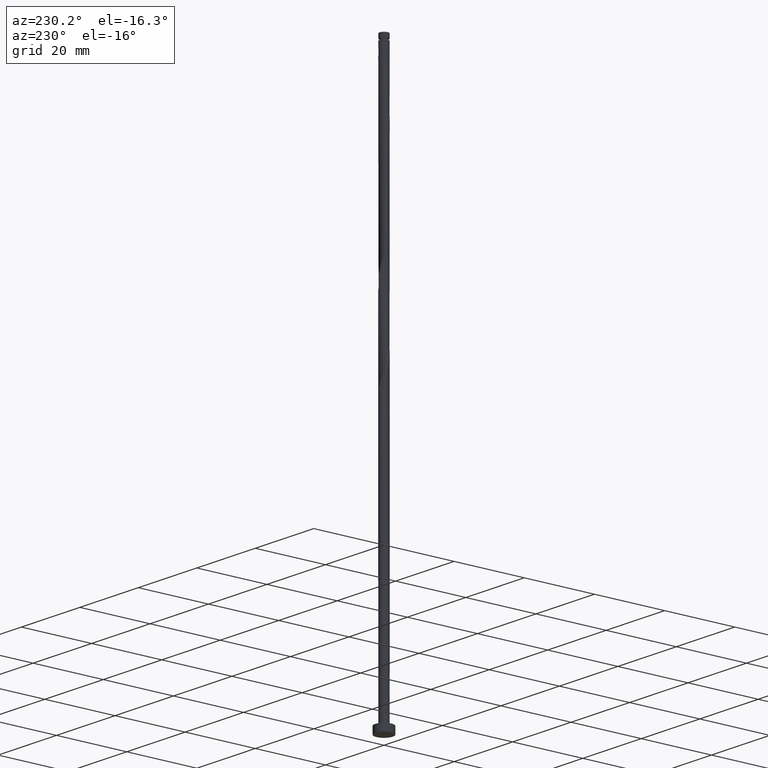
[diagram: clean part render]
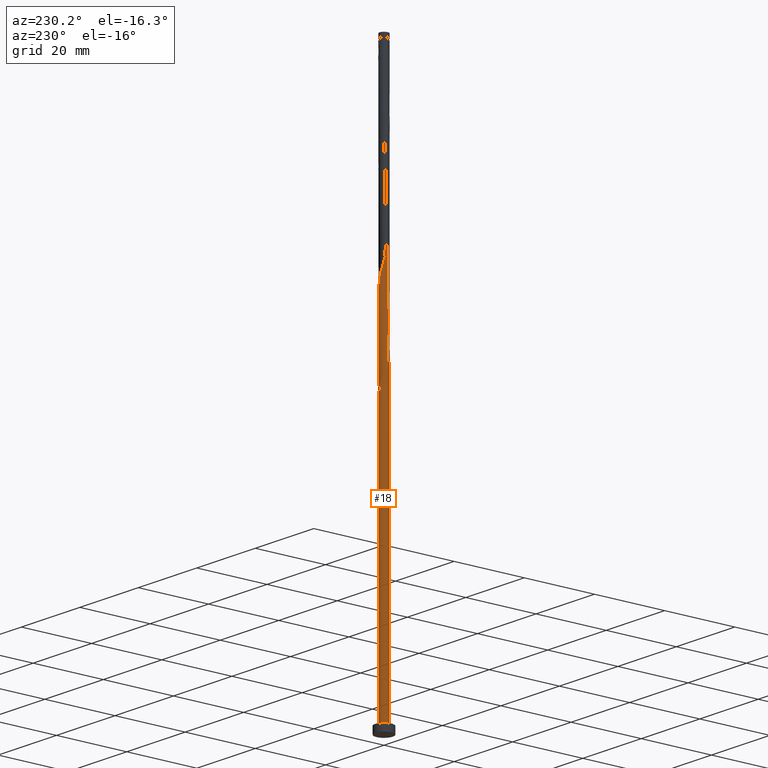
[diagram: same view with one face highlighted and labeled with its STEP entity id]
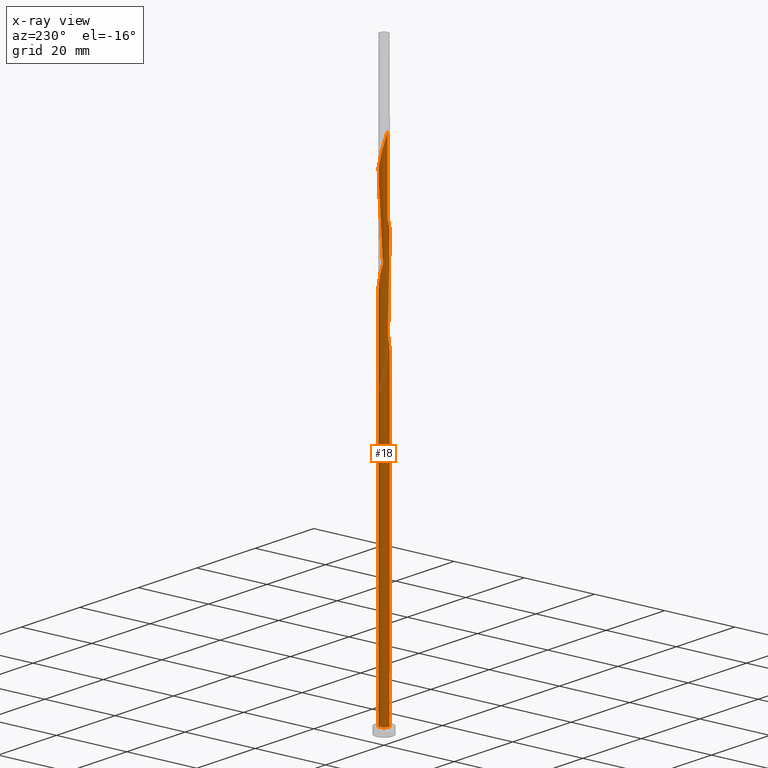
[diagram: x-ray of the same camera — body ghosted, the highlighted face saturated]
A machine part, auxiliary view. The second image highlights one B-rep face of the part: STEP entity #18.
The next image is the same camera in x-ray: the body ghosted, the highlighted face saturated — about 0% of this face is hidden behind the body in this view.
In plain terms, the highlighted cylindrical surface (bore or boss wall) has radius 1.25 mm, axis along (-0, -0, -1).
Its self-contained STEP definition (entity closure, byte-faithful):
#14 = CARTESIAN_POINT ( 'NONE',  ( 0.5837932458153767268, -1.105298804007474267, 92.80911615437577211 ) ) ;
#18 = ADVANCED_FACE ( 'NONE', ( #1232 ), #1478, .T. ) ;
#21 = CARTESIAN_POINT ( 'NONE',  ( -1.247931635353089153, -0.07187929802779809141, 84.32426766952727348 ) ) ;
#28 = CARTESIAN_POINT ( 'NONE',  ( -1.010966014528696499, -0.7351514928693054785, 86.74851009376969557 ) ) ;
#33 = CARTESIAN_POINT ( 'NONE',  ( -1.249999999999999778, 1.297504196028295292E-15, 85.77978275488877102 ) ) ;
#36 = CARTESIAN_POINT ( 'NONE',  ( -1.116664842001303448, -0.5897965240134718234, 112.8091161543757579 ) ) ;
#41 = DIRECTION ( 'NONE',  ( 1.000000000000000000, 0.000000000000000000, 0.000000000000000000 ) ) ;
#43 = CARTESIAN_POINT ( 'NONE',  ( -1.000377128850254760, 0.7707437376803593088, 107.9606313058909421 ) ) ;
#50 = CARTESIAN_POINT ( 'NONE',  ( -1.250000000000000000, 0.000000000000000000, 160.0000000000000000 ) ) ;
#54 = CARTESIAN_POINT ( 'NONE',  ( 0.6205301684468550460, 1.099883002481394367, 128.5666919119515228 ) ) ;
#63 = CARTESIAN_POINT ( 'NONE',  ( -1.250000000000001554, 7.740154714059228246E-16, 137.4142071296203369 ) ) ;
#75 = CARTESIAN_POINT ( 'NONE',  ( -0.4248752694204980807, 1.189235600936596082, 132.2030555483151488 ) ) ;
#76 = ORIENTED_EDGE ( 'NONE', *, *, #1436, .F. ) ;
#121 = CARTESIAN_POINT ( 'NONE',  ( -0.4248752694204980807, 1.189235600936596082, 78.86972221498182023 ) ) ;
#146 = CARTESIAN_POINT ( 'NONE',  ( -1.088687779416463108, 0.6142140660626844717, 108.5666919119515370 ) ) ;
#148 = EDGE_CURVE ( 'NONE', #838, #358, #1489, .T. ) ;
#153 = CARTESIAN_POINT ( 'NONE',  ( 0.2855214860250666620, 1.230153563632689684, 103.1121464574060553 ) ) ;
#162 = CARTESIAN_POINT ( 'NONE',  ( 1.010966014528696721, 0.7351514928693050344, 100.0818434271030526 ) ) ;
#166 = DIRECTION ( 'NONE',  ( 0.000000000000000000, 0.000000000000000000, 1.000000000000000000 ) ) ;
#169 = CARTESIAN_POINT ( 'NONE',  ( -1.177130897255199038, -0.4205506517973470748, 85.53638888164847742 ) ) ;
#182 = CARTESIAN_POINT ( 'NONE',  ( 0.1064515184461269220, 1.245458981348048999, 130.3848737301333927 ) ) ;
#188 = ORIENTED_EDGE ( 'NONE', *, *, #148, .F. ) ;
#201 = ORIENTED_EDGE ( 'NONE', *, *, #533, .T. ) ;
#208 = ORIENTED_EDGE ( 'NONE', *, *, #1490, .F. ) ;
#209 = CARTESIAN_POINT ( 'NONE',  ( 1.258266318197082345, -0.1075461835256263515, 123.7182070634666786 ) ) ;
#225 = CARTESIAN_POINT ( 'NONE',  ( -1.088687779416463108, 0.6142140660626844717, 81.90002524528486560 ) ) ;
#238 = VERTEX_POINT ( 'NONE', #33 ) ;
#254 = CARTESIAN_POINT ( 'NONE',  ( -1.237596952509096404, -0.2513047795812223262, 84.93032827558786835 ) ) ;
#258 = CARTESIAN_POINT ( 'NONE',  ( -0.4530258272359612426, -1.165018283057042137, 89.17275251801216029 ) ) ;
#264 = CARTESIAN_POINT ( 'NONE',  ( 1.176998429982671457, -0.4576843944450091906, 95.83941918467878907 ) ) ;
#269 = VERTEX_POINT ( 'NONE', #753 ) ;
#272 = CARTESIAN_POINT ( 'NONE',  ( -0.2487468592766551856, 1.225000000000002309, 104.9303282755878683 ) ) ;
#282 = CARTESIAN_POINT ( 'NONE',  ( -1.010966014528696499, -0.7351514928693054785, 113.4151767604363954 ) ) ;
#290 = EDGE_CURVE ( 'NONE', #1102, #238, #306, .T. ) ;
#291 = CARTESIAN_POINT ( 'NONE',  ( -0.7628986777514711326, 0.9901947321032649185, 81.90002524528483718 ) ) ;
#297 = CARTESIAN_POINT ( 'NONE',  ( 0.2487468592766556019, 1.225000000000000089, 78.26366160892121115 ) ) ;
#300 = ORIENTED_EDGE ( 'NONE', *, *, #290, .F. ) ;
#305 = ORIENTED_EDGE ( 'NONE', *, *, #1452, .T. ) ;
#306 = LINE ( 'NONE', #50, #1217 ) ;
#309 = CARTESIAN_POINT ( 'NONE',  ( -1.250000000000001776, 0.1431611592314047110, 136.9282471766490232 ) ) ;
#317 = CARTESIAN_POINT ( 'NONE',  ( -1.250000000000000000, 0.000000000000000000, 160.0000000000000000 ) ) ;
#318 = CARTESIAN_POINT ( 'NONE',  ( 1.247931635353089153, 0.07187929802779795263, 124.3242676695272877 ) ) ;
#320 = EDGE_LOOP ( 'NONE', ( #300, #208, #700, #201, #305, #188, #76, #1377, #1349 ) ) ;
#322 = DIRECTION ( 'NONE',  ( -1.000000000000000000, 0.000000000000000000, 0.000000000000000000 ) ) ;
#358 = VERTEX_POINT ( 'NONE', #1229 ) ;
#359 = CARTESIAN_POINT ( 'NONE',  ( -1.250000000000003109, 0.1431611592313993542, 83.59491384331570885 ) ) ;
#373 = CARTESIAN_POINT ( 'NONE',  ( -1.250000000000001776, -0.03596940815478263942, 84.20297180100523349 ) ) ;
#378 = CARTESIAN_POINT ( 'NONE',  ( 0.7427112222102560946, -1.021362007078350675, 93.41517676043635277 ) ) ;
#384 = CARTESIAN_POINT ( 'NONE',  ( -0.2855214860250664399, -1.230153563632689906, 116.4454797907393981 ) ) ;
#394 = CARTESIAN_POINT ( 'NONE',  ( 1.000377128850254538, -0.7707437376803593088, 94.62729797255757092 ) ) ;
#401 = CARTESIAN_POINT ( 'NONE',  ( -1.247931635353089153, -0.07187929802779809141, 110.9909343361939449 ) ) ;
#411 = CARTESIAN_POINT ( 'NONE',  ( 0.7628986777514725759, 0.9901947321032669169, 127.9606313058909137 ) ) ;
#413 = CARTESIAN_POINT ( 'NONE',  ( 0.000000000000000000, 0.000000000000000000, 78.26366160892121115 ) ) ;
#420 = DIRECTION ( 'NONE',  ( -0.000000000000000000, -0.000000000000000000, -1.000000000000000000 ) ) ;
#421 = CARTESIAN_POINT ( 'NONE',  ( 0.2855214860250666620, 1.230153563632689684, 129.7788131240727409 ) ) ;
#433 = VECTOR ( 'NONE', #420, 1000.000000000000000 ) ;
#439 = CARTESIAN_POINT ( 'NONE',  ( -1.249999999999999778, 0.03596940815477887160, 85.65768475017054584 ) ) ;
#448 = CARTESIAN_POINT ( 'NONE',  ( 0.4530258272359606875, 1.165018283057042137, 129.1727525180121177 ) ) ;
#464 = CARTESIAN_POINT ( 'NONE',  ( 0.000000000000000000, 0.000000000000000000, 2.000000000000000000 ) ) ;
#472 = CARTESIAN_POINT ( 'NONE',  ( -1.250000000000001776, -9.647149353754983334E-16, 84.08087379628700830 ) ) ;
#488 = CARTESIAN_POINT ( 'NONE',  ( 1.258266318197082345, -0.1075461835256263515, 97.05154039680003564 ) ) ;
#491 = CARTESIAN_POINT ( 'NONE',  ( -1.176998429982671457, 0.4576843944450096902, 109.1727525180121319 ) ) ;
#497 = CARTESIAN_POINT ( 'NONE',  ( -1.237596952509096404, -0.2513047795812223262, 111.5969949422545398 ) ) ;
#503 = CARTESIAN_POINT ( 'NONE',  ( -0.4530258272359612426, -1.165018283057042137, 115.8394191846788175 ) ) ;
#509 = CARTESIAN_POINT ( 'NONE',  ( -1.258266318197082567, 0.1075461835256263932, 110.3848737301333216 ) ) ;
#517 = CARTESIAN_POINT ( 'NONE',  ( -1.177130897255197484, 0.4205506517973465752, 84.32426766952725927 ) ) ;
#533 = EDGE_CURVE ( 'NONE', #358, #269, #784, .T. ) ;
#535 = CARTESIAN_POINT ( 'NONE',  ( 1.217632374089876901, -0.2826152889853179029, 123.1121464574060838 ) ) ;
#571 = AXIS2_PLACEMENT_3D ( 'NONE', #413, #894, #322 ) ;
#578 =( BOUNDED_CURVE ( )  B_SPLINE_CURVE ( 2, ( #944, #373, #21, #254, #169, #1456, #28, #1233, #1212, #875, #258, #845, #1207, #1315, #857, #722, #14, #378, #728, #394, #865, #264, #1203, #488, #617, #1104, #989, #598, #162, #963, #1442, #1096, #1333, #153, #1074, #621, #272, #1339, #981, #602, #1437, #43, #146, #491, #1083, #509, #401, #497, #1431, #36, #282, #967, #851, #1319, #503, #384, #609, #756, #1090, #749, #973, #1325, #737, #1450, #1222, #668, #535, #209, #318, #1241, #1030, #1147, #1021, #790, #411, #54, #448, #421, #182, #1348, #1133, #75, #1014, #1501, #629, #640, #1113, #650, #1125, #309, #63 ),
 .UNSPECIFIED., .F., .T. ) 
 B_SPLINE_CURVE_WITH_KNOTS ( ( 3, 2, 2, 2, 2, 2, 2, 2, 2, 2, 2, 2, 2, 2, 2, 2, 2, 2, 2, 2, 2, 2, 2, 2, 2, 2, 2, 2, 2, 2, 2, 2, 2, 2, 2, 2, 2, 2, 2, 2, 2, 2, 2, 2, 2, 3 ),
 ( 0.05452521624175158538, 0.05681818181818176772, 0.06818181818181823228, 0.07954545454545458583, 0.09090909090909093937, 0.1022727272727272929, 0.1136363636363636465, 0.1250000000000000000, 0.1363636363636363535, 0.1477272727272727071, 0.1590909090909090606, 0.1704545454545454142, 0.1818181818181817677, 0.1931818181818182323, 0.2045454545454545858, 0.2159090909090909394, 0.2272727272727272929, 0.2386363636363636465, 0.2500000000000000000, 0.2613636363636363535, 0.2727272727272727071, 0.2840909090909090606, 0.2954545454545454142, 0.3068181818181817677, 0.3181818181818182323, 0.3295454545454545858, 0.3409090909090909394, 0.3522727272727272929, 0.3636363636363636465, 0.3750000000000000000, 0.3863636363636363535, 0.3977272727272727071, 0.4090909090909090606, 0.4204545454545454142, 0.4318181818181817677, 0.4431818181818182323, 0.4545454545454545858, 0.4659090909090909394, 0.4772727272727272929, 0.4886363636363636465, 0.5000000000000000000, 0.5113636363636363535, 0.5227272727272727071, 0.5340909090909091717, 0.5454545454545454142, 0.5545252162417513286 ),
 .UNSPECIFIED. ) 
 CURVE ( )  GEOMETRIC_REPRESENTATION_ITEM ( )  RATIONAL_B_SPLINE_CURVE ( ( 0.9061101570135799976, 0.9072237824201621059, 0.9090909090909393697, 0.8998376744372414970, 0.9090909090909393697, 0.8998376744372414970, 0.9090909090909393697, 0.8998376744372414970, 0.9090909090909393697, 0.8998376744372414970, 0.9090909090909393697, 0.8998376744372414970, 0.9090909090909393697, 0.8998376744372414970, 0.9090909090909393697, 0.8998376744372414970, 0.9090909090909393697, 0.8998376744372414970, 0.9090909090909393697, 0.8998376744372414970, 0.9090909090909393697, 0.8998376744372414970, 0.9090909090909393697, 0.8998376744372414970, 0.9090909090909393697, 0.8998376744372414970, 0.9090909090909393697, 0.8998376744372414970, 0.9090909090909393697, 0.8998376744372414970, 0.9090909090909393697, 0.8998376744372414970, 0.9090909090909393697, 0.8998376744372414970, 0.9090909090909393697, 0.8998376744372414970, 0.9090909090909393697, 0.8998376744372414970, 0.9090909090909393697, 0.8998376744372414970, 0.9090909090909393697, 0.8998376744372414970, 0.9090909090909393697, 0.8998376744372414970, 0.9090909090909393697, 0.8998376744372414970, 0.9090909090909393697, 0.8998376744372414970, 0.9090909090909393697, 0.8998376744372414970, 0.9090909090909393697, 0.8998376744372414970, 0.9090909090909393697, 0.8998376744372414970, 0.9090909090909393697, 0.8998376744372414970, 0.9090909090909393697, 0.8998376744372414970, 0.9090909090909393697, 0.8998376744372414970, 0.9090909090909393697, 0.8998376744372414970, 0.9090909090909393697, 0.8998376744372414970, 0.9090909090909393697, 0.8998376744372414970, 0.9090909090909393697, 0.8998376744372414970, 0.9090909090909393697, 0.8998376744372414970, 0.9090909090909393697, 0.8998376744372414970, 0.9090909090909393697, 0.8998376744372414970, 0.9090909090909393697, 0.8998376744372414970, 0.9090909090909393697, 0.8998376744372414970, 0.9090909090909393697, 0.8998376744372414970, 0.9090909090909393697, 0.8998376744372414970, 0.9090909090909393697, 0.8998376744372414970, 0.9090909090909393697, 0.8998376744372414970, 0.9090909090909393697, 0.8998376744372414970, 0.9090909090909393697, 0.9017048011080190939, 0.9061101570135796646 ) ) 
 REPRESENTATION_ITEM ( '' )  );
#593 = DIRECTION ( 'NONE',  ( 1.000000000000000000, 0.000000000000000000, 0.000000000000000000 ) ) ;
#598 = CARTESIAN_POINT ( 'NONE',  ( 1.116664842001303670, 0.5897965240134717124, 99.47578282104244352 ) ) ;
#602 = CARTESIAN_POINT ( 'NONE',  ( -0.7427112222102560946, 1.021362007078350675, 106.7485100937696956 ) ) ;
#609 = CARTESIAN_POINT ( 'NONE',  ( -0.1064515184461268249, -1.245458981348048999, 117.0515403968000214 ) ) ;
#617 = CARTESIAN_POINT ( 'NONE',  ( 1.247931635353089153, 0.07187929802779795263, 97.65760100286063050 ) ) ;
#621 = CARTESIAN_POINT ( 'NONE',  ( -0.07261844913281270686, 1.260764399063406760, 104.3242676695272451 ) ) ;
#629 = CARTESIAN_POINT ( 'NONE',  ( -0.8715441755302550941, 0.8960528723793550476, 134.0212373664969903 ) ) ;
#640 = CARTESIAN_POINT ( 'NONE',  ( -1.000377128850254760, 0.7707437376803593088, 134.6272979725575283 ) ) ;
#650 = CARTESIAN_POINT ( 'NONE',  ( -1.176998429982671457, 0.4576843944450096902, 135.8394191846787749 ) ) ;
#668 = CARTESIAN_POINT ( 'NONE',  ( 1.176998429982671457, -0.4576843944450091906, 122.5060858513454463 ) ) ;
#685 = CARTESIAN_POINT ( 'NONE',  ( -1.217632374089876901, 0.2826152889853180139, 83.11214645740606954 ) ) ;
#700 = ORIENTED_EDGE ( 'NONE', *, *, #148, .T. ) ;
#722 = CARTESIAN_POINT ( 'NONE',  ( 0.4248752694204978586, -1.189235600936596526, 92.20305554831517725 ) ) ;
#728 = CARTESIAN_POINT ( 'NONE',  ( 0.8715441755302550941, -0.8960528723793550476, 94.02123736649699026 ) ) ;
#737 = CARTESIAN_POINT ( 'NONE',  ( 0.8715441755302550941, -0.8960528723793550476, 120.6879040331636617 ) ) ;
#740 = CIRCLE ( 'NONE', #820, 1.250000000000000000 ) ;
#749 = CARTESIAN_POINT ( 'NONE',  ( 0.4248752694204978586, -1.189235600936596526, 118.8697222149818487 ) ) ;
#753 = CARTESIAN_POINT ( 'NONE',  ( 1.250000000000000000, 0.000000000000000000, 2.000000000000000000 ) ) ;
#756 = CARTESIAN_POINT ( 'NONE',  ( 0.07261844913281287339, -1.260764399063406760, 117.6576010028606163 ) ) ;
#784 = CIRCLE ( 'NONE', #1081, 1.250000000000000000 ) ;
#790 = CARTESIAN_POINT ( 'NONE',  ( 0.9052671870560904388, 0.8805064617251380232, 127.3545706998302762 ) ) ;
#820 = AXIS2_PLACEMENT_3D ( 'NONE', #464, #1394, #593 ) ;
#838 = VERTEX_POINT ( 'NONE', #472 ) ;
#845 = CARTESIAN_POINT ( 'NONE',  ( -0.2855214860250664399, -1.230153563632689906, 89.77881312407274095 ) ) ;
#851 = CARTESIAN_POINT ( 'NONE',  ( -0.7628986777514726869, -0.9901947321032662508, 114.6272979725575709 ) ) ;
#857 = CARTESIAN_POINT ( 'NONE',  ( 0.2487468592766552966, -1.225000000000002309, 91.59699494225453975 ) ) ;
#865 = CARTESIAN_POINT ( 'NONE',  ( 1.088687779416463108, -0.6142140660626845827, 95.23335857861817999 ) ) ;
#875 = CARTESIAN_POINT ( 'NONE',  ( -0.6205301684468556012, -1.099883002481393923, 88.56669191195150859 ) ) ;
#882 = CARTESIAN_POINT ( 'NONE',  ( -1.237596952509094406, 0.2513047795812222152, 84.93032827558788256 ) ) ;
#894 = DIRECTION ( 'NONE',  ( 0.000000000000000000, -0.000000000000000000, -1.000000000000000000 ) ) ;
#916 = CARTESIAN_POINT ( 'NONE',  ( -1.116664842001300784, 0.5897965240134714904, 83.71820706346666441 ) ) ;
#927 = CARTESIAN_POINT ( 'NONE',  ( -0.8715441755302550941, 0.8960528723793550476, 80.68790403316363324 ) ) ;
#944 = CARTESIAN_POINT ( 'NONE',  ( -1.250000000000001776, -9.647149353754985307E-16, 84.08087379628700830 ) ) ;
#951 = CARTESIAN_POINT ( 'NONE',  ( -0.5837932458153770598, 1.105298804007473823, 79.47578282104245773 ) ) ;
#963 = CARTESIAN_POINT ( 'NONE',  ( 0.9052671870560904388, 0.8805064617251380232, 100.6879040331636475 ) ) ;
#967 = CARTESIAN_POINT ( 'NONE',  ( -0.9052671870560899947, -0.8805064617251384673, 114.0212373664969761 ) ) ;
#973 = CARTESIAN_POINT ( 'NONE',  ( 0.5837932458153767268, -1.105298804007474267, 119.4757828210424293 ) ) ;
#981 = CARTESIAN_POINT ( 'NONE',  ( -0.5837932458153770598, 1.105298804007473823, 106.1424494877091007 ) ) ;
#989 = CARTESIAN_POINT ( 'NONE',  ( 1.177130897255199260, 0.4205506517973469083, 98.86972221498183444 ) ) ;
#996 = CARTESIAN_POINT ( 'NONE',  ( 0.000000000000000000, 0.000000000000000000, 160.0000000000000000 ) ) ;
#997 = CARTESIAN_POINT ( 'NONE',  ( 0.07261844913281294278, 1.260764399063404761, 78.86972221498182023 ) ) ;
#1005 = CARTESIAN_POINT ( 'NONE',  ( -0.9052671870560882184, 0.8805064617251375791, 82.50608585134544626 ) ) ;
#1014 = CARTESIAN_POINT ( 'NONE',  ( -0.5837932458153770598, 1.105298804007473823, 132.8091161543758005 ) ) ;
#1021 = CARTESIAN_POINT ( 'NONE',  ( 1.010966014528696721, 0.7351514928693050344, 126.7485100937696956 ) ) ;
#1030 = CARTESIAN_POINT ( 'NONE',  ( 1.177130897255199260, 0.4205506517973469083, 125.5363888816484632 ) ) ;
#1031 = VERTEX_POINT ( 'NONE', #1201 ) ;
#1036 = CARTESIAN_POINT ( 'NONE',  ( -1.250000000000001554, 7.740154714059228246E-16, 137.4142071296203369 ) ) ;
#1061 = VERTEX_POINT ( 'NONE', #1357 ) ;
#1074 = CARTESIAN_POINT ( 'NONE',  ( 0.1064515184461269220, 1.245458981348048999, 103.7182070634666786 ) ) ;
#1081 = AXIS2_PLACEMENT_3D ( 'NONE', #1219, #166, #41 ) ;
#1083 = CARTESIAN_POINT ( 'NONE',  ( -1.217632374089876901, 0.2826152889853180139, 109.7788131240727409 ) ) ;
#1090 = CARTESIAN_POINT ( 'NONE',  ( 0.2487468592766552966, -1.225000000000002309, 118.2636616089212112 ) ) ;
#1096 = CARTESIAN_POINT ( 'NONE',  ( 0.6205301684468550460, 1.099883002481394367, 101.9000252452848372 ) ) ;
#1102 = VERTEX_POINT ( 'NONE', #1036 ) ;
#1104 = CARTESIAN_POINT ( 'NONE',  ( 1.237596952509096404, 0.2513047795812221041, 98.26366160892123958 ) ) ;
#1113 = CARTESIAN_POINT ( 'NONE',  ( -1.088687779416463108, 0.6142140660626844717, 135.2333585786181800 ) ) ;
#1125 = CARTESIAN_POINT ( 'NONE',  ( -1.217632374089876901, 0.2826152889853180139, 136.4454797907394266 ) ) ;
#1132 = DIRECTION ( 'NONE',  ( -0.000000000000000000, -0.000000000000000000, -1.000000000000000000 ) ) ;
#1133 = CARTESIAN_POINT ( 'NONE',  ( -0.2487468592766551856, 1.225000000000002309, 131.5969949422545540 ) ) ;
#1147 = CARTESIAN_POINT ( 'NONE',  ( 1.116664842001303670, 0.5897965240134717124, 126.1424494877090581 ) ) ;
#1163 = CARTESIAN_POINT ( 'NONE',  ( -1.250000000000001776, -9.647149353754985307E-16, 84.08087379628700830 ) ) ;
#1169 = CIRCLE ( 'NONE', #571, 1.250000000000000000 ) ;
#1170 = CARTESIAN_POINT ( 'NONE',  ( -1.000377128850254760, 0.7707437376803593088, 81.29396463922425653 ) ) ;
#1185 = EDGE_CURVE ( 'NONE', #1061, #1031, #1169, .T. ) ;
#1201 = CARTESIAN_POINT ( 'NONE',  ( 0.2487468592766556297, 1.225000000000000089, 78.26366160892121115 ) ) ;
#1203 = CARTESIAN_POINT ( 'NONE',  ( 1.217632374089876901, -0.2826152889853179029, 96.44547979073939814 ) ) ;
#1207 = CARTESIAN_POINT ( 'NONE',  ( -0.1064515184461268249, -1.245458981348048999, 90.38487373013336423 ) ) ;
#1212 = CARTESIAN_POINT ( 'NONE',  ( -0.7628986777514726869, -0.9901947321032662508, 87.96063130589091372 ) ) ;
#1217 = VECTOR ( 'NONE', #1355, 1000.000000000000000 ) ;
#1219 = CARTESIAN_POINT ( 'NONE',  ( 0.000000000000000000, 0.000000000000000000, 2.000000000000000000 ) ) ;
#1222 = CARTESIAN_POINT ( 'NONE',  ( 1.088687779416463108, -0.6142140660626845827, 121.9000252452848514 ) ) ;
#1229 = CARTESIAN_POINT ( 'NONE',  ( -1.250000000000000000, 0.000000000000000000, 2.000000000000000000 ) ) ;
#1232 = FACE_OUTER_BOUND ( 'NONE', #320, .T. ) ;
#1233 = CARTESIAN_POINT ( 'NONE',  ( -0.9052671870560899947, -0.8805064617251384673, 87.35457069983030465 ) ) ;
#1241 = CARTESIAN_POINT ( 'NONE',  ( 1.237596952509096404, 0.2513047795812221041, 124.9303282755879110 ) ) ;
#1261 = CARTESIAN_POINT ( 'NONE',  ( -0.2855214860250658293, 1.230153563632687908, 80.08184342710302417 ) ) ;
#1267 = CARTESIAN_POINT ( 'NONE',  ( -1.247931635353086932, 0.07187929802779827182, 85.53638888164847742 ) ) ;
#1315 = CARTESIAN_POINT ( 'NONE',  ( 0.07261844913281287339, -1.260764399063406760, 90.99093433619395910 ) ) ;
#1318 =( BOUNDED_CURVE ( )  B_SPLINE_CURVE ( 2, ( #1526, #121, #951, #1416, #927, #1170, #225, #1535, #685, #359, #1163 ),
 .UNSPECIFIED., .F., .T. ) 
 B_SPLINE_CURVE_WITH_KNOTS ( ( 3, 2, 2, 2, 2, 3 ),
 ( 0.000000000000000000, 0.01136363636363635354, 0.02272727272727270709, 0.03409090909090906063, 0.04545454545454541417, 0.05452521624175159232 ),
 .UNSPECIFIED. ) 
 CURVE ( )  GEOMETRIC_REPRESENTATION_ITEM ( )  RATIONAL_B_SPLINE_CURVE ( ( 0.9090909090909393697, 0.8998376744372414970, 0.9090909090909393697, 0.8998376744372414970, 0.9090909090909393697, 0.8998376744372414970, 0.9090909090909393697, 0.8998376744372414970, 0.9090909090909393697, 0.9017048011080188719, 0.9061101570135799976 ) ) 
 REPRESENTATION_ITEM ( '' )  );
#1319 = CARTESIAN_POINT ( 'NONE',  ( -0.6205301684468556012, -1.099883002481393923, 115.2333585786181800 ) ) ;
#1325 = CARTESIAN_POINT ( 'NONE',  ( 0.7427112222102560946, -1.021362007078350675, 120.0818434271030384 ) ) ;
#1333 = CARTESIAN_POINT ( 'NONE',  ( 0.4530258272359606875, 1.165018283057042137, 102.5060858513454889 ) ) ;
#1339 = CARTESIAN_POINT ( 'NONE',  ( -0.4248752694204980807, 1.189235600936596082, 105.5363888816484490 ) ) ;
#1348 = CARTESIAN_POINT ( 'NONE',  ( -0.07261844913281270686, 1.260764399063406760, 130.9909343361939307 ) ) ;
#1349 = ORIENTED_EDGE ( 'NONE', *, *, #1533, .F. ) ;
#1355 = DIRECTION ( 'NONE',  ( -0.000000000000000000, -0.000000000000000000, -1.000000000000000000 ) ) ;
#1357 = CARTESIAN_POINT ( 'NONE',  ( -0.2487468592766551856, 1.225000000000002309, 78.26366160892121115 ) ) ;
#1358 = CARTESIAN_POINT ( 'NONE',  ( -1.010966014528694723, 0.7351514928693043682, 83.11214645740606954 ) ) ;
#1377 = ORIENTED_EDGE ( 'NONE', *, *, #1185, .T. ) ;
#1383 = CARTESIAN_POINT ( 'NONE',  ( -0.1064515184461264502, 1.245458981348047001, 79.47578282104242930 ) ) ;
#1391 = AXIS2_PLACEMENT_3D ( 'NONE', #996, #1132, #1465 ) ;
#1394 = DIRECTION ( 'NONE',  ( 0.000000000000000000, 0.000000000000000000, 1.000000000000000000 ) ) ;
#1410 =( BOUNDED_CURVE ( )  B_SPLINE_CURVE ( 2, ( #1506, #439, #1267, #882, #517, #916, #1358, #1005, #291, #1491, #1479, #1261, #1383, #997, #297 ),
 .UNSPECIFIED., .F., .T. ) 
 B_SPLINE_CURVE_WITH_KNOTS ( ( 3, 2, 2, 2, 2, 2, 2, 3 ),
 ( 0.9295252162417513286, 0.9318181818181817677, 0.9431818181818182323, 0.9545454545454545858, 0.9659090909090909394, 0.9772727272727272929, 0.9886363636363636465, 1.000000000000000000 ),
 .UNSPECIFIED. ) 
 CURVE ( )  GEOMETRIC_REPRESENTATION_ITEM ( )  RATIONAL_B_SPLINE_CURVE ( ( 0.9061101570135735583, 0.9072237824201556666, 0.9090909090909331525, 0.8998376744372353908, 0.9090909090909331525, 0.8998376744372353908, 0.9090909090909331525, 0.8998376744372353908, 0.9090909090909331525, 0.8998376744372353908, 0.9090909090909331525, 0.8998376744372353908, 0.9090909090909331525, 0.8998376744372353908, 0.9090909090909331525 ) ) 
 REPRESENTATION_ITEM ( '' )  );
#1416 = CARTESIAN_POINT ( 'NONE',  ( -0.7427112222102560946, 1.021362007078350675, 80.08184342710303838 ) ) ;
#1431 = CARTESIAN_POINT ( 'NONE',  ( -1.177130897255199038, -0.4205506517973470748, 112.2030555483151772 ) ) ;
#1436 = EDGE_CURVE ( 'NONE', #1061, #838, #1318, .T. ) ;
#1437 = CARTESIAN_POINT ( 'NONE',  ( -0.8715441755302550941, 0.8960528723793550476, 107.3545706998303189 ) ) ;
#1442 = CARTESIAN_POINT ( 'NONE',  ( 0.7628986777514725759, 0.9901947321032669169, 101.2939646392242139 ) ) ;
#1450 = CARTESIAN_POINT ( 'NONE',  ( 1.000377128850254538, -0.7707437376803593088, 121.2939646392242423 ) ) ;
#1452 = EDGE_CURVE ( 'NONE', #269, #358, #740, .T. ) ;
#1456 = CARTESIAN_POINT ( 'NONE',  ( -1.116664842001303448, -0.5897965240134718234, 86.14244948770908650 ) ) ;
#1465 = DIRECTION ( 'NONE',  ( -1.000000000000000000, 0.000000000000000000, 0.000000000000000000 ) ) ;
#1478 = CYLINDRICAL_SURFACE ( 'NONE', #1391, 1.250000000000000000 ) ;
#1479 = CARTESIAN_POINT ( 'NONE',  ( -0.4530258272359600213, 1.165018283057040360, 80.68790403316366167 ) ) ;
#1489 = LINE ( 'NONE', #317, #433 ) ;
#1490 = EDGE_CURVE ( 'NONE', #838, #1102, #578, .T. ) ;
#1491 = CARTESIAN_POINT ( 'NONE',  ( -0.6205301684468543799, 1.099883002481392147, 81.29396463922421390 ) ) ;
#1501 = CARTESIAN_POINT ( 'NONE',  ( -0.7427112222102560946, 1.021362007078350675, 133.4151767604363670 ) ) ;
#1506 = CARTESIAN_POINT ( 'NONE',  ( -1.249999999999999556, 1.297504196028295489E-15, 85.77978275488877102 ) ) ;
#1526 = CARTESIAN_POINT ( 'NONE',  ( -0.2487468592766551856, 1.225000000000002309, 78.26366160892121115 ) ) ;
#1533 = EDGE_CURVE ( 'NONE', #238, #1031, #1410, .T. ) ;
#1535 = CARTESIAN_POINT ( 'NONE',  ( -1.176998429982671457, 0.4576843944450096902, 82.50608585134544626 ) ) ;